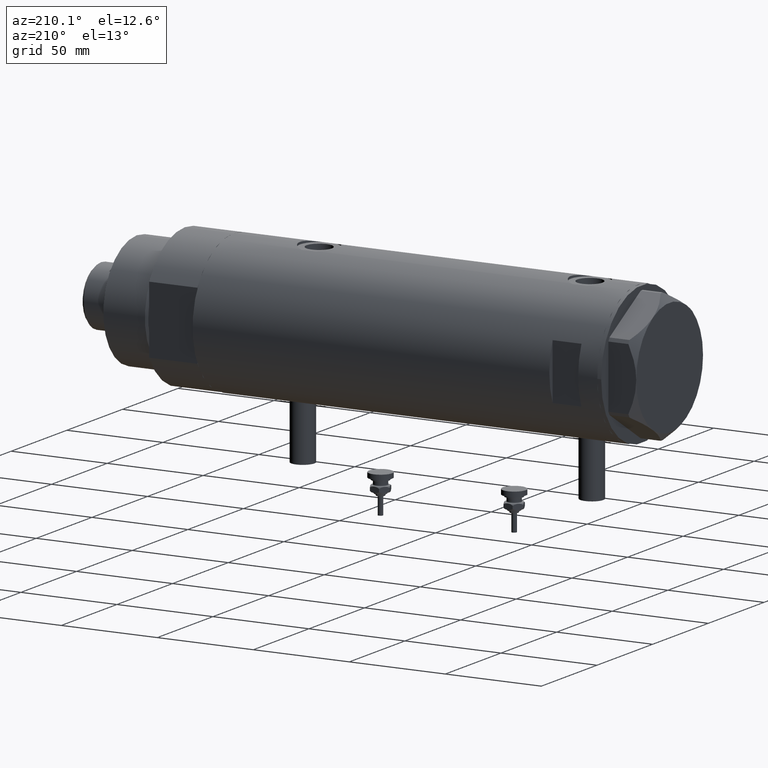
[diagram: clean part render]
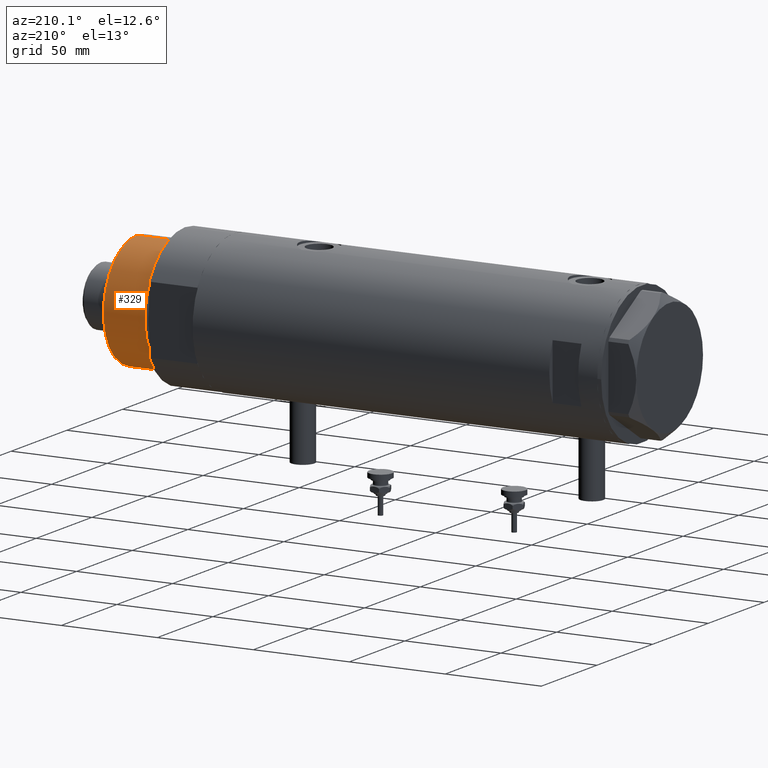
[diagram: same view with one face highlighted and labeled with its STEP entity id]
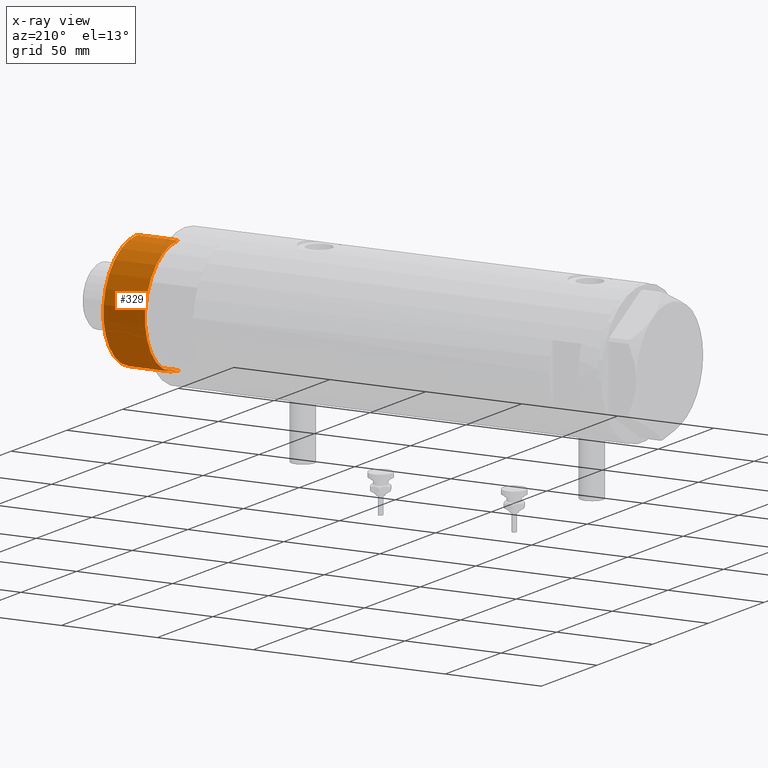
[diagram: x-ray of the same camera — body ghosted, the highlighted face saturated]
A machine part, auxiliary view. The second image highlights one B-rep face of the part: STEP entity #329.
The next image is the same camera in x-ray: the body ghosted, the highlighted face saturated — about 0% of this face is hidden behind the body in this view.
In plain terms, the highlighted cylindrical surface (partial cylindrical patch) has radius 30 mm, axis along (-1, -0, 0).
Its self-contained STEP definition (entity closure, byte-faithful):
#98 = ORIENTED_EDGE ( 'NONE', *, *, #3204, .F. ) ;
#109 = EDGE_LOOP ( 'NONE', ( #98, #3362, #5093, #4739 ) ) ;
#329 = ADVANCED_FACE ( 'NONE', ( #5672 ), #1549, .T. ) ;
#602 = CARTESIAN_POINT ( 'NONE',  ( -30.00000000000000000, 0.000000000000000000, 28.57384048104054486 ) ) ;
#693 = AXIS2_PLACEMENT_3D ( 'NONE', #1649, #2136, #5796 ) ;
#1549 = CYLINDRICAL_SURFACE ( 'NONE', #4561, 30.00000000000000000 ) ;
#1602 = VERTEX_POINT ( 'NONE', #4676 ) ;
#1649 = CARTESIAN_POINT ( 'NONE',  ( 0.000000000000000000, 0.000000000000000000, 50.19999999999999574 ) ) ;
#2136 = DIRECTION ( 'NONE',  ( 0.000000000000000000, 0.000000000000000000, 1.000000000000000000 ) ) ;
#2216 = EDGE_CURVE ( 'NONE', #4525, #5126, #4562, .T. ) ;
#2586 = DIRECTION ( 'NONE',  ( 1.000000000000000000, 0.000000000000000000, 0.000000000000000000 ) ) ;
#2730 = DIRECTION ( 'NONE',  ( -0.000000000000000000, -0.000000000000000000, -1.000000000000000000 ) ) ;
#2849 = CARTESIAN_POINT ( 'NONE',  ( 30.00000000000000000, 3.673940397442058389E-15, 50.19999999999999574 ) ) ;
#2945 = VECTOR ( 'NONE', #2730, 1000.000000000000000 ) ;
#3072 = DIRECTION ( 'NONE',  ( -0.000000000000000000, -0.000000000000000000, 1.000000000000000000 ) ) ;
#3204 = EDGE_CURVE ( 'NONE', #4556, #4525, #5609, .T. ) ;
#3362 = ORIENTED_EDGE ( 'NONE', *, *, #3417, .T. ) ;
#3417 = EDGE_CURVE ( 'NONE', #4556, #1602, #4818, .T. ) ;
#3534 = DIRECTION ( 'NONE',  ( -0.000000000000000000, -0.000000000000000000, -1.000000000000000000 ) ) ;
#3884 = DIRECTION ( 'NONE',  ( -1.000000000000000000, 0.000000000000000000, 0.000000000000000000 ) ) ;
#4201 = CARTESIAN_POINT ( 'NONE',  ( -30.00000000000000000, 0.000000000000000000, 50.19999999999999574 ) ) ;
#4424 = CARTESIAN_POINT ( 'NONE',  ( 30.00000000000000000, 3.673940397442058389E-15, 50.19999999999999574 ) ) ;
#4525 = VERTEX_POINT ( 'NONE', #4201 ) ;
#4556 = VERTEX_POINT ( 'NONE', #2849 ) ;
#4561 = AXIS2_PLACEMENT_3D ( 'NONE', #5291, #4842, #3884 ) ;
#4562 = LINE ( 'NONE', #5011, #2945 ) ;
#4676 = CARTESIAN_POINT ( 'NONE',  ( 30.00000000000000000, 3.673940397442058389E-15, 28.57384048104054486 ) ) ;
#4739 = ORIENTED_EDGE ( 'NONE', *, *, #2216, .F. ) ;
#4818 = LINE ( 'NONE', #4424, #5427 ) ;
#4842 = DIRECTION ( 'NONE',  ( -0.000000000000000000, -0.000000000000000000, -1.000000000000000000 ) ) ;
#4862 = CIRCLE ( 'NONE', #5720, 30.00000000000000000 ) ;
#5011 = CARTESIAN_POINT ( 'NONE',  ( -30.00000000000000000, 0.000000000000000000, 50.19999999999999574 ) ) ;
#5093 = ORIENTED_EDGE ( 'NONE', *, *, #5222, .T. ) ;
#5126 = VERTEX_POINT ( 'NONE', #602 ) ;
#5222 = EDGE_CURVE ( 'NONE', #1602, #5126, #4862, .T. ) ;
#5291 = CARTESIAN_POINT ( 'NONE',  ( 0.000000000000000000, 0.000000000000000000, 50.19999999999999574 ) ) ;
#5311 = CARTESIAN_POINT ( 'NONE',  ( 0.000000000000000000, 0.000000000000000000, 28.57384048104054486 ) ) ;
#5427 = VECTOR ( 'NONE', #3534, 1000.000000000000000 ) ;
#5609 = CIRCLE ( 'NONE', #693, 30.00000000000000000 ) ;
#5672 = FACE_OUTER_BOUND ( 'NONE', #109, .T. ) ;
#5720 = AXIS2_PLACEMENT_3D ( 'NONE', #5311, #3072, #2586 ) ;
#5796 = DIRECTION ( 'NONE',  ( 1.000000000000000000, 0.000000000000000000, 0.000000000000000000 ) ) ;